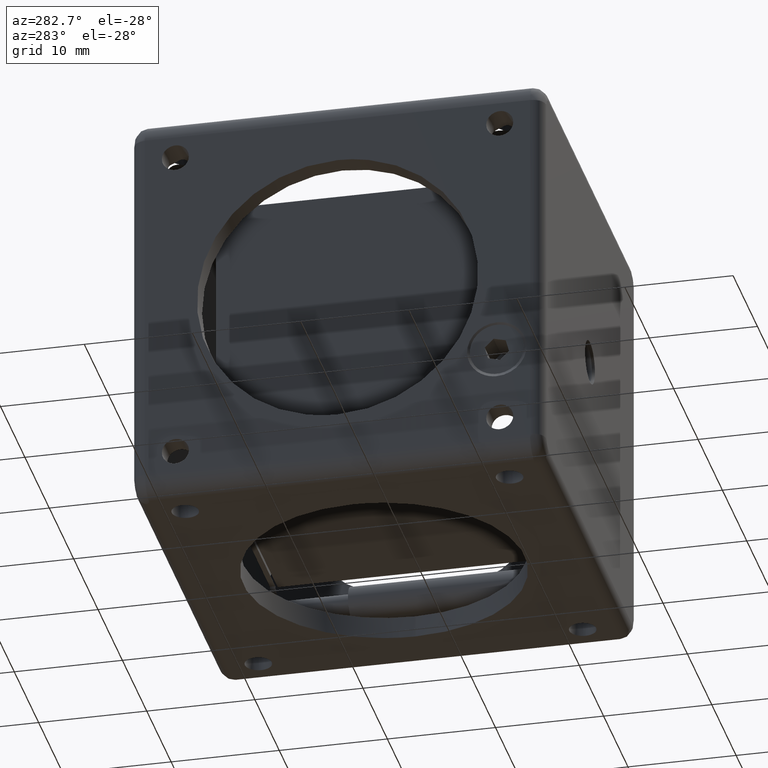
[diagram: clean part render]
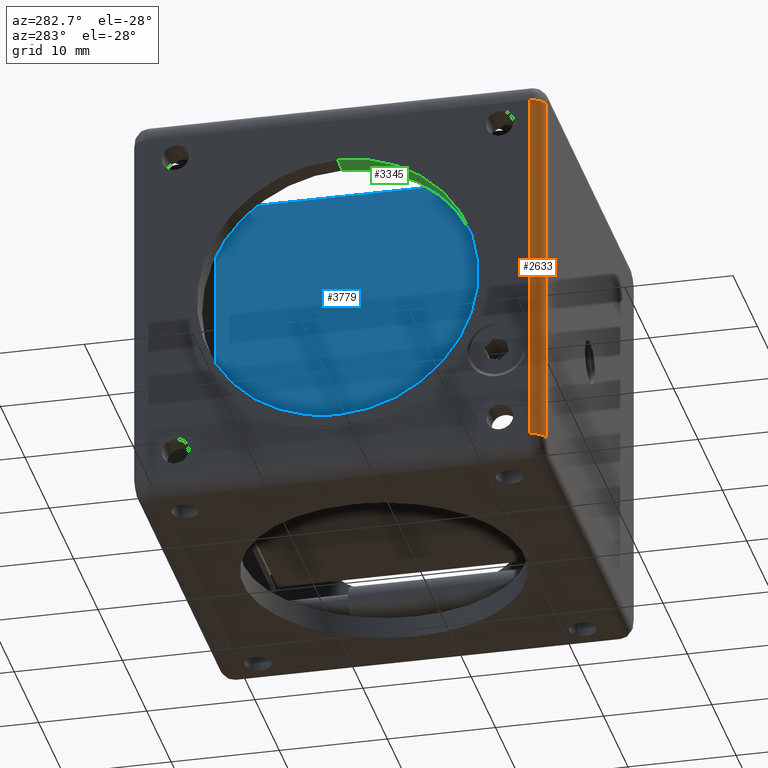
[diagram: same view with three faces highlighted in distinct colors, each labeled with its STEP entity id]
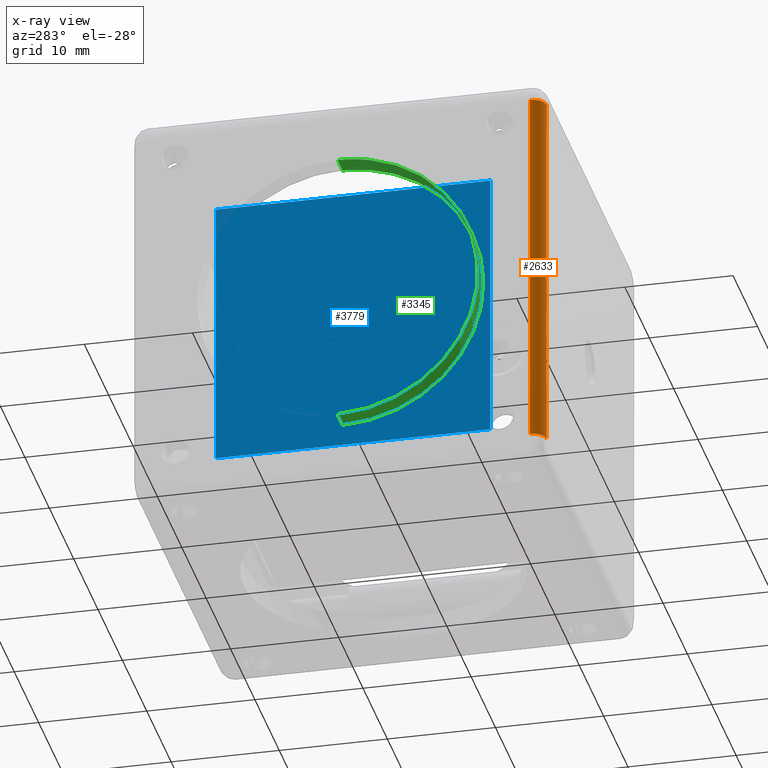
[diagram: x-ray of the same camera — body ghosted, the three highlighted faces saturated]
A machine part, auxiliary view with three faces highlighted in distinct colors.
The next image is the same camera in x-ray (body ghosted, the three faces saturated) — at least one of them is partly hidden behind the body in this view.
Their STEP definitions:

[orange] entity #2633 — the highlighted face is a freeform B-spline surface patch.
#276 = ORIENTED_EDGE ( 'NONE', *, *, #8525, .F. ) ;
#390 = CARTESIAN_POINT ( 'NONE',  ( -348.9007940824679963, -4.214280474578480096, 55.14999999999999858 ) ) ;
#710 = CARTESIAN_POINT ( 'NONE',  ( -348.9007940824679963, -4.214280474578480096, 55.14999999999999858 ) ) ;
#740 =( BOUNDED_SURFACE ( )  B_SPLINE_SURFACE ( 3, 1, ( 
 ( #2223, #710 ),
 ( #9213, #2842 ),
 ( #5729, #8648 ),
 ( #3594, #3023 ) ),
 .UNSPECIFIED., .F., .F., .F. ) 
 B_SPLINE_SURFACE_WITH_KNOTS ( ( 4, 4 ),
 ( 2, 2 ),
 ( 0.000000000000000000, 1.000000000000000000 ),
 ( 0.000000000000000000, 1.000000000000000000 ),
 .UNSPECIFIED. ) 
 GEOMETRIC_REPRESENTATION_ITEM ( )  RATIONAL_B_SPLINE_SURFACE ( (
 ( 1.000000000000000000, 1.000000000000000000),
 ( 0.8047378541243649375, 0.8047378541243649375),
 ( 0.8047378541243649375, 0.8047378541243649375),
 ( 1.000000000000000000, 1.000000000000000000) ) ) 
 REPRESENTATION_ITEM ( '' )  SURFACE ( )  );
#1399 = ORIENTED_EDGE ( 'NONE', *, *, #1884, .F. ) ;
#1758 = EDGE_LOOP ( 'NONE', ( #276, #7154, #1399, #7596 ) ) ;
#1884 = EDGE_CURVE ( 'NONE', #2623, #8496, #7425, .T. ) ;
#2179 = B_SPLINE_CURVE_WITH_KNOTS ( 'NONE', 1,
 ( #4306, #3616 ),
 .UNSPECIFIED., .F., .F.,
 ( 2, 2 ),
 ( 0.000000000000000000, 1.000000000000000000 ),
 .UNSPECIFIED. ) ;
#2223 = CARTESIAN_POINT ( 'NONE',  ( -348.9007940824679963, -4.214280474578480096, 21.05000000000000071 ) ) ;
#2245 = CARTESIAN_POINT ( 'NONE',  ( -348.9007940824681100, -4.946513521612097897, 21.05000000000002558 ) ) ;
#2623 = VERTEX_POINT ( 'NONE', #2822 ) ;
#2633 = ADVANCED_FACE ( 'NONE', ( #7866 ), #740, .T. ) ;
#2822 = CARTESIAN_POINT ( 'NONE',  ( -348.9007940824679963, -4.214280474578480096, 55.14999999999999858 ) ) ;
#2842 = CARTESIAN_POINT ( 'NONE',  ( -348.9007940824683374, -4.946513521612090791, 55.15000000000002700 ) ) ;
#2955 = CARTESIAN_POINT ( 'NONE',  ( -348.9007940824679963, -4.214280474578480096, 21.05000000000000071 ) ) ;
#3023 = CARTESIAN_POINT ( 'NONE',  ( -347.6507940824679395, -5.464280474578449898, 55.14999999999999858 ) ) ;
#3229 = CARTESIAN_POINT ( 'NONE',  ( -348.9007940824683942, -4.946513521612079245, 55.15000000000001990 ) ) ;
#3594 = CARTESIAN_POINT ( 'NONE',  ( -347.6507940824679395, -5.464280474578449898, 21.05000000000000071 ) ) ;
#3616 = CARTESIAN_POINT ( 'NONE',  ( -347.6507940824679395, -5.464280474578470326, 55.14999999999999858 ) ) ;
#3908 = CARTESIAN_POINT ( 'NONE',  ( -348.9007940824679963, -4.214280474578480096, 55.14999999999999858 ) ) ;
#4057 = CARTESIAN_POINT ( 'NONE',  ( -348.9007940824679963, -4.214280474578480096, 21.05000000000000071 ) ) ;
#4306 = CARTESIAN_POINT ( 'NONE',  ( -347.6507940824679395, -5.464280474578470326, 21.05000000000000071 ) ) ;
#4357 = VERTEX_POINT ( 'NONE', #4057 ) ;
#4698 = CARTESIAN_POINT ( 'NONE',  ( -347.6507940824679395, -5.464280474578470326, 55.14999999999999858 ) ) ;
#4766 = CARTESIAN_POINT ( 'NONE',  ( -347.6507940824679395, -5.464280474578470326, 21.05000000000000071 ) ) ;
#4933 = VERTEX_POINT ( 'NONE', #4766 ) ;
#5729 = CARTESIAN_POINT ( 'NONE',  ( -348.3830271295021248, -5.464280474578453450, 21.05000000000002558 ) ) ;
#6021 = CARTESIAN_POINT ( 'NONE',  ( -348.3830271295021817, -5.464280474578453450, 55.15000000000001990 ) ) ;
#6065 = CARTESIAN_POINT ( 'NONE',  ( -347.6507940824679395, -5.464280474578470326, 55.14999999999999858 ) ) ;
#6546 = EDGE_CURVE ( 'NONE', #2623, #4357, #8957, .T. ) ;
#6611 =( BOUNDED_CURVE ( )  B_SPLINE_CURVE ( 3, ( #7708, #8669, #2245, #2955 ),
 .UNSPECIFIED., .F., .F. ) 
 B_SPLINE_CURVE_WITH_KNOTS ( ( 4, 4 ),
 ( 0.000000000000000000, 1.000000000000000000 ),
 .UNSPECIFIED. ) 
 CURVE ( )  GEOMETRIC_REPRESENTATION_ITEM ( )  RATIONAL_B_SPLINE_CURVE ( ( 1.000000000000000000, 0.8047378541243669359, 0.8047378541243669359, 1.000000000000000000 ) ) 
 REPRESENTATION_ITEM ( '' )  );
#6774 = CARTESIAN_POINT ( 'NONE',  ( -348.9007940824679963, -4.214280474578480096, 21.05000000000000071 ) ) ;
#6781 = EDGE_CURVE ( 'NONE', #4933, #8496, #2179, .T. ) ;
#7154 = ORIENTED_EDGE ( 'NONE', *, *, #6781, .T. ) ;
#7425 =( BOUNDED_CURVE ( )  B_SPLINE_CURVE ( 3, ( #390, #3229, #6021, #6065 ),
 .UNSPECIFIED., .F., .F. ) 
 B_SPLINE_CURVE_WITH_KNOTS ( ( 4, 4 ),
 ( 0.000000000000000000, 1.000000000000000000 ),
 .UNSPECIFIED. ) 
 CURVE ( )  GEOMETRIC_REPRESENTATION_ITEM ( )  RATIONAL_B_SPLINE_CURVE ( ( 1.000000000000000000, 0.8047378541243749295, 0.8047378541243749295, 1.000000000000000000 ) ) 
 REPRESENTATION_ITEM ( '' )  );
#7596 = ORIENTED_EDGE ( 'NONE', *, *, #6546, .T. ) ;
#7708 = CARTESIAN_POINT ( 'NONE',  ( -347.6507940824679395, -5.464280474578470326, 21.05000000000000071 ) ) ;
#7866 = FACE_OUTER_BOUND ( 'NONE', #1758, .T. ) ;
#8496 = VERTEX_POINT ( 'NONE', #4698 ) ;
#8525 = EDGE_CURVE ( 'NONE', #4933, #4357, #6611, .T. ) ;
#8648 = CARTESIAN_POINT ( 'NONE',  ( -348.3830271295021248, -5.464280474578453450, 55.15000000000002700 ) ) ;
#8669 = CARTESIAN_POINT ( 'NONE',  ( -348.3830271295018974, -5.464280474578475655, 21.05000000000002558 ) ) ;
#8957 = B_SPLINE_CURVE_WITH_KNOTS ( 'NONE', 1,
 ( #3908, #6774 ),
 .UNSPECIFIED., .F., .F.,
 ( 2, 2 ),
 ( 0.000000000000000000, 1.000000000000000000 ),
 .UNSPECIFIED. ) ;
#9213 = CARTESIAN_POINT ( 'NONE',  ( -348.9007940824683374, -4.946513521612090791, 21.05000000000002558 ) ) ;

[blue] entity #3779 — the highlighted face is a freeform B-spline surface patch.
#26 = EDGE_CURVE ( 'NONE', #7423, #1640, #5425, .T. ) ;
#49 = FACE_OUTER_BOUND ( 'NONE', #3664, .T. ) ;
#522 = CARTESIAN_POINT ( 'NONE',  ( -342.5507940824679736, 0.8857195254215219915, 25.39999999999999858 ) ) ;
#524 = B_SPLINE_SURFACE_WITH_KNOTS ( 'NONE', 1, 1, ( 
 ( #4381, #7215 ),
 ( #3968, #2455 ) ),
 .UNSPECIFIED., .F., .F., .F.,
 ( 2, 2 ),
 ( 2, 2 ),
 ( 0.000000000000000000, 1.000000000000000000 ),
 ( 0.000000000000000000, 1.000000000000000000 ),
 .UNSPECIFIED. ) ;
#697 = ORIENTED_EDGE ( 'NONE', *, *, #6156, .T. ) ;
#900 = CARTESIAN_POINT ( 'NONE',  ( -342.5507940824679736, 26.28571952542150214, 25.39999999999999858 ) ) ;
#1640 = VERTEX_POINT ( 'NONE', #2710 ) ;
#1796 = EDGE_CURVE ( 'NONE', #1640, #6013, #7712, .T. ) ;
#1810 = CARTESIAN_POINT ( 'NONE',  ( -342.5507940824679736, 0.8857195254215219915, 50.79999999999999716 ) ) ;
#1975 = CARTESIAN_POINT ( 'NONE',  ( -342.5507940824679736, 26.28571952542150214, 50.79999999999999716 ) ) ;
#2023 = CARTESIAN_POINT ( 'NONE',  ( -342.5507940824679736, 26.28571952542150214, 25.39999999999999858 ) ) ;
#2455 = CARTESIAN_POINT ( 'NONE',  ( -342.5507940824679736, 0.8857195254215219915, 50.79999999999999716 ) ) ;
#2710 = CARTESIAN_POINT ( 'NONE',  ( -342.5507940824679736, 0.8857195254215219915, 50.79999999999999716 ) ) ;
#3292 = ORIENTED_EDGE ( 'NONE', *, *, #1796, .T. ) ;
#3664 = EDGE_LOOP ( 'NONE', ( #3292, #697, #4448, #7524 ) ) ;
#3779 = ADVANCED_FACE ( 'NONE', ( #49 ), #524, .T. ) ;
#3968 = CARTESIAN_POINT ( 'NONE',  ( -342.5507940824679736, 0.8857195254215219915, 25.39999999999999858 ) ) ;
#3971 = CARTESIAN_POINT ( 'NONE',  ( -342.5507940824679736, 26.28571952542150214, 50.79999999999999716 ) ) ;
#4381 = CARTESIAN_POINT ( 'NONE',  ( -342.5507940824679736, 26.28571952542150214, 25.39999999999999858 ) ) ;
#4448 = ORIENTED_EDGE ( 'NONE', *, *, #4643, .F. ) ;
#4643 = EDGE_CURVE ( 'NONE', #7423, #5377, #6175, .T. ) ;
#4812 = B_SPLINE_CURVE_WITH_KNOTS ( 'NONE', 1,
 ( #1975, #2023 ),
 .UNSPECIFIED., .F., .F.,
 ( 2, 2 ),
 ( -1.000000000000000000, 0.000000000000000000 ),
 .UNSPECIFIED. ) ;
#5377 = VERTEX_POINT ( 'NONE', #900 ) ;
#5425 = B_SPLINE_CURVE_WITH_KNOTS ( 'NONE', 1,
 ( #9114, #9092 ),
 .UNSPECIFIED., .F., .F.,
 ( 2, 2 ),
 ( 0.000000000000000000, 1.000000000000000000 ),
 .UNSPECIFIED. ) ;
#5955 = CARTESIAN_POINT ( 'NONE',  ( -342.5507940824679736, 0.8857195254215219915, 25.39999999999999858 ) ) ;
#6013 = VERTEX_POINT ( 'NONE', #3971 ) ;
#6156 = EDGE_CURVE ( 'NONE', #6013, #5377, #4812, .T. ) ;
#6175 = B_SPLINE_CURVE_WITH_KNOTS ( 'NONE', 1,
 ( #5955, #8036 ),
 .UNSPECIFIED., .F., .F.,
 ( 2, 2 ),
 ( -1.000000000000000000, 0.000000000000000000 ),
 .UNSPECIFIED. ) ;
#7215 = CARTESIAN_POINT ( 'NONE',  ( -342.5507940824679736, 26.28571952542150214, 50.79999999999999716 ) ) ;
#7423 = VERTEX_POINT ( 'NONE', #522 ) ;
#7524 = ORIENTED_EDGE ( 'NONE', *, *, #26, .T. ) ;
#7712 = B_SPLINE_CURVE_WITH_KNOTS ( 'NONE', 1,
 ( #1810, #8285 ),
 .UNSPECIFIED., .F., .F.,
 ( 2, 2 ),
 ( -1.000000000000000000, 0.000000000000000000 ),
 .UNSPECIFIED. ) ;
#8036 = CARTESIAN_POINT ( 'NONE',  ( -342.5507940824679736, 26.28571952542150214, 25.39999999999999858 ) ) ;
#8285 = CARTESIAN_POINT ( 'NONE',  ( -342.5507940824679736, 26.28571952542150214, 50.79999999999999716 ) ) ;
#9092 = CARTESIAN_POINT ( 'NONE',  ( -342.5507940824679736, 0.8857195254215219915, 50.79999999999999716 ) ) ;
#9114 = CARTESIAN_POINT ( 'NONE',  ( -342.5507940824679736, 0.8857195254215219915, 25.39999999999999858 ) ) ;

[green] entity #3345 — the highlighted face is a freeform B-spline surface patch.
#157 = CARTESIAN_POINT ( 'NONE',  ( -349.1057940824679804, -12.41428047457879025, 25.09999999999991971 ) ) ;
#205 = CARTESIAN_POINT ( 'NONE',  ( -346.6457940824680009, -12.41428047457879025, 51.10000000000025011 ) ) ;
#331 = CARTESIAN_POINT ( 'NONE',  ( -348.9007940824679963, 13.58571952542149930, 51.10000000000000142 ) ) ;
#391 = CARTESIAN_POINT ( 'NONE',  ( -346.8507940824680418, 3.789729314929918935, 29.51121854274668266 ) ) ;
#474 = CARTESIAN_POINT ( 'NONE',  ( -346.8507940824679849, 13.58571952542149930, 51.10000000000000142 ) ) ;
#480 = CARTESIAN_POINT ( 'NONE',  ( -346.8507940824679849, 9.399483284911218206, 50.43709922398942069 ) ) ;
#488 = CARTESIAN_POINT ( 'NONE',  ( -348.9007940824679963, 13.58571952542149930, 25.09999999999949694 ) ) ;
#525 = CARTESIAN_POINT ( 'NONE',  ( -346.8507940824679849, 0.6689735872500892633, 39.79895150549489813 ) ) ;
#592 = VERTEX_POINT ( 'NONE', #488 ) ;
#788 = EDGE_CURVE ( 'NONE', #4492, #5997, #6809, .T. ) ;
#863 = ORIENTED_EDGE ( 'NONE', *, *, #8089, .F. ) ;
#1012 = CARTESIAN_POINT ( 'NONE',  ( -346.8507940824679849, 10.21232265855110910, 25.51632864767485032 ) ) ;
#1042 = CARTESIAN_POINT ( 'NONE',  ( -348.9007940824679963, 13.58571952542149930, 51.10000000000000142 ) ) ;
#1149 = CARTESIAN_POINT ( 'NONE',  ( -346.8507940824680986, 2.302368379807791854, 31.58735245471213560 ) ) ;
#1176 = B_SPLINE_CURVE_WITH_KNOTS ( 'NONE', 1,
 ( #4582, #2427 ),
 .UNSPECIFIED., .F., .F.,
 ( 2, 2 ),
 ( 0.000000000000000000, 1.000000000000000000 ),
 .UNSPECIFIED. ) ;
#1245 = CARTESIAN_POINT ( 'NONE',  ( -346.8507940824679849, 4.996938068054816107, 47.89599021043773064 ) ) ;
#1288 = CARTESIAN_POINT ( 'NONE',  ( -346.8507940824679281, 3.250866210669171252, 46.03217486489364063 ) ) ;
#1702 =( BOUNDED_SURFACE ( )  B_SPLINE_SURFACE ( 1, 3, ( 
 ( #8620, #2239, #205, #8751 ),
 ( #2195, #157, #6576, #7833 ) ),
 .UNSPECIFIED., .F., .F., .F. ) 
 B_SPLINE_SURFACE_WITH_KNOTS ( ( 2, 2 ),
 ( 4, 4 ),
 ( 0.000000000000000000, 1.000000000000000000 ),
 ( 0.000000000000000000, 1.000000000000000000 ),
 .UNSPECIFIED. ) 
 GEOMETRIC_REPRESENTATION_ITEM ( )  RATIONAL_B_SPLINE_SURFACE ( (
 ( 1.000000000000000000, 0.3333333333333329818, 0.3333333333333329818, 1.000000000000000000),
 ( 1.000000000000000000, 0.3333333333333329818, 0.3333333333333329818, 1.000000000000000000) ) ) 
 REPRESENTATION_ITEM ( '' )  SURFACE ( )  );
#1811 = CARTESIAN_POINT ( 'NONE',  ( -346.8507940824680418, 1.002041732945015529, 34.72660185191835325 ) ) ;
#1859 = CARTESIAN_POINT ( 'NONE',  ( -346.8507940824679849, 5.653541012006046529, 48.43485877414543950 ) ) ;
#1971 = EDGE_LOOP ( 'NONE', ( #863, #5742, #9002, #9235 ) ) ;
#1989 = CARTESIAN_POINT ( 'NONE',  ( -346.8507940824679849, 7.822186524439306510, 49.78376862130364344 ) ) ;
#2195 = CARTESIAN_POINT ( 'NONE',  ( -349.1057940824679804, 13.58571952542149930, 25.10000000000000142 ) ) ;
#2212 = CARTESIAN_POINT ( 'NONE',  ( -346.8507940824679849, 13.58571952542149930, 25.10000000000000142 ) ) ;
#2239 = CARTESIAN_POINT ( 'NONE',  ( -346.6457940824680009, -12.41428047457879025, 25.09999999999991971 ) ) ;
#2427 = CARTESIAN_POINT ( 'NONE',  ( -346.8507940824679849, 13.58571952542149930, 25.10000000000000142 ) ) ;
#2500 = VERTEX_POINT ( 'NONE', #2212 ) ;
#2526 = B_SPLINE_CURVE_WITH_KNOTS ( 'NONE', 3,
 ( #4580, #6669, #7408, #1012, #3406, #4110, #7548, #9123, #3357, #391, #5594, #1149, #6938, #4027, #1811, #3316, #2752, #8240, #525, #7637, #2654, #4763, #3983, #1288, #6850, #1245, #1859, #9025, #1989, #480, #5500, #5412, #6246, #8330 ),
 .UNSPECIFIED., .F., .F.,
 ( 4, 2, 2, 2, 2, 2, 2, 2, 2, 2, 2, 2, 2, 2, 2, 2, 4 ),
 ( 0.000000000000000000, 0.06249999999999984734, 0.1249999999999996947, 0.1874999999999995559, 0.2499999999999993894, 0.3124999999999992228, 0.3749999999999992784, 0.4374999999999993894, 0.4999999999999994449, 0.5624999999999995559, 0.6249999999999995559, 0.6874999999999996669, 0.7499999999999996669, 0.8124999999999997780, 0.8749999999999998890, 0.9374999999999998890, 1.000000000000000000 ),
 .UNSPECIFIED. ) ;
#2654 = CARTESIAN_POINT ( 'NONE',  ( -346.8507940824679849, 1.248614234877265972, 42.28623875331923188 ) ) ;
#2752 = CARTESIAN_POINT ( 'NONE',  ( -346.8507940824679281, 0.5857162422378557887, 37.24637450426764218 ) ) ;
#2970 =( BOUNDED_CURVE ( )  B_SPLINE_CURVE ( 3, ( #5914, #3125, #8834, #1042 ),
 .UNSPECIFIED., .F., .T. ) 
 B_SPLINE_CURVE_WITH_KNOTS ( ( 4, 4 ),
 ( 0.000000000000000000, 1.000000000000000000 ),
 .UNSPECIFIED. ) 
 CURVE ( )  GEOMETRIC_REPRESENTATION_ITEM ( )  RATIONAL_B_SPLINE_CURVE ( ( 1.000000000000000000, 0.3333333333333330373, 0.3333333333333330373, 1.000000000000000000 ) ) 
 REPRESENTATION_ITEM ( '' )  );
#3040 = FACE_OUTER_BOUND ( 'NONE', #1971, .T. ) ;
#3125 = CARTESIAN_POINT ( 'NONE',  ( -348.9007940824679395, -12.41428047457878847, 25.09999999999991616 ) ) ;
#3316 = CARTESIAN_POINT ( 'NONE',  ( -346.8507940824680418, 0.6689800274135917491, 36.40104977566200972 ) ) ;
#3345 = ADVANCED_FACE ( 'NONE', ( #3040 ), #1702, .T. ) ;
#3357 = CARTESIAN_POINT ( 'NONE',  ( -346.8507940824679849, 4.996933425062556111, 28.30400514640283660 ) ) ;
#3406 = CARTESIAN_POINT ( 'NONE',  ( -346.8507940824679849, 9.399480772135687445, 25.76289470945201288 ) ) ;
#3495 = CARTESIAN_POINT ( 'NONE',  ( -348.9007940824679963, 13.58571952542149930, 51.10000000000000142 ) ) ;
#3809 = EDGE_CURVE ( 'NONE', #592, #5997, #2970, .T. ) ;
#3983 = CARTESIAN_POINT ( 'NONE',  ( -346.8507940824679849, 2.302362920307318372, 44.61265119361571863 ) ) ;
#4027 = CARTESIAN_POINT ( 'NONE',  ( -346.8507940824680986, 1.248620301338906113, 33.91376375964868117 ) ) ;
#4110 = CARTESIAN_POINT ( 'NONE',  ( -346.8507940824680418, 7.822189037214811513, 26.41623744525430695 ) ) ;
#4492 = VERTEX_POINT ( 'NONE', #6558 ) ;
#4580 = CARTESIAN_POINT ( 'NONE',  ( -346.8507940824679849, 13.58571952542149930, 25.10000000000000142 ) ) ;
#4582 = CARTESIAN_POINT ( 'NONE',  ( -348.9007940824679963, 13.58571952542149930, 25.09999999999949694 ) ) ;
#4763 = CARTESIAN_POINT ( 'NONE',  ( -346.8507940824679849, 1.901956970671930147, 43.86353048817279898 ) ) ;
#5412 = CARTESIAN_POINT ( 'NONE',  ( -346.8507940824680986, 11.88675279605567070, 51.01673621508049195 ) ) ;
#5500 = CARTESIAN_POINT ( 'NONE',  ( -346.8507940824679849, 10.21233788236789408, 50.68368107540315037 ) ) ;
#5594 = CARTESIAN_POINT ( 'NONE',  ( -346.8507940824680418, 3.250860751168698215, 30.16782148677797082 ) ) ;
#5742 = ORIENTED_EDGE ( 'NONE', *, *, #6835, .F. ) ;
#5914 = CARTESIAN_POINT ( 'NONE',  ( -348.9007940824679963, 13.58571952542149930, 25.09999999999949694 ) ) ;
#5997 = VERTEX_POINT ( 'NONE', #331 ) ;
#6246 = CARTESIAN_POINT ( 'NONE',  ( -346.8507940824680986, 12.73214419145891441, 51.09999999999983089 ) ) ;
#6558 = CARTESIAN_POINT ( 'NONE',  ( -346.8507940824679849, 13.58571952542149930, 51.10000000000000142 ) ) ;
#6576 = CARTESIAN_POINT ( 'NONE',  ( -349.1057940824679804, -12.41428047457879025, 51.10000000000025011 ) ) ;
#6669 = CARTESIAN_POINT ( 'NONE',  ( -346.8507940824680418, 12.73211053504270751, 25.09999999999988773 ) ) ;
#6809 = B_SPLINE_CURVE_WITH_KNOTS ( 'NONE', 1,
 ( #474, #3495 ),
 .UNSPECIFIED., .F., .F.,
 ( 2, 2 ),
 ( 0.000000000000000000, 1.000000000000000000 ),
 .UNSPECIFIED. ) ;
#6835 = EDGE_CURVE ( 'NONE', #592, #2500, #1176, .T. ) ;
#6850 = CARTESIAN_POINT ( 'NONE',  ( -346.8507940824679849, 3.789724671937658940, 46.68878610041215893 ) ) ;
#6938 = CARTESIAN_POINT ( 'NONE',  ( -346.8507940824679849, 1.901950904210290005, 32.33646699885871811 ) ) ;
#7408 = CARTESIAN_POINT ( 'NONE',  ( -346.8507940824679849, 11.88676801987245035, 25.18325406184091975 ) ) ;
#7548 = CARTESIAN_POINT ( 'NONE',  ( -346.8507940824679849, 7.073068332042039330, 26.81664339470921377 ) ) ;
#7637 = CARTESIAN_POINT ( 'NONE',  ( -346.8507940824679281, 1.002048173108533557, 41.47339686692416905 ) ) ;
#7833 = CARTESIAN_POINT ( 'NONE',  ( -349.1057940824679804, 13.58571952542149930, 51.10000000000000142 ) ) ;
#8089 = EDGE_CURVE ( 'NONE', #2500, #4492, #2526, .T. ) ;
#8240 = CARTESIAN_POINT ( 'NONE',  ( -346.8507940824678712, 0.5857228086047554516, 38.95362549573233935 ) ) ;
#8330 = CARTESIAN_POINT ( 'NONE',  ( -346.8507940824679849, 13.58571952542149930, 51.10000000000000142 ) ) ;
#8620 = CARTESIAN_POINT ( 'NONE',  ( -346.6457940824680009, 13.58571952542149930, 25.10000000000000142 ) ) ;
#8751 = CARTESIAN_POINT ( 'NONE',  ( -346.6457940824680009, 13.58571952542149930, 51.10000000000000142 ) ) ;
#8834 = CARTESIAN_POINT ( 'NONE',  ( -348.9007940824679395, -12.41428047457878847, 51.10000000000025011 ) ) ;
#9002 = ORIENTED_EDGE ( 'NONE', *, *, #3809, .T. ) ;
#9025 = CARTESIAN_POINT ( 'NONE',  ( -346.8507940824680418, 7.073071980327092056, 49.38335114572041817 ) ) ;
#9123 = CARTESIAN_POINT ( 'NONE',  ( -346.8507940824680418, 5.653544660291100143, 27.76514668542437292 ) ) ;
#9235 = ORIENTED_EDGE ( 'NONE', *, *, #788, .F. ) ;